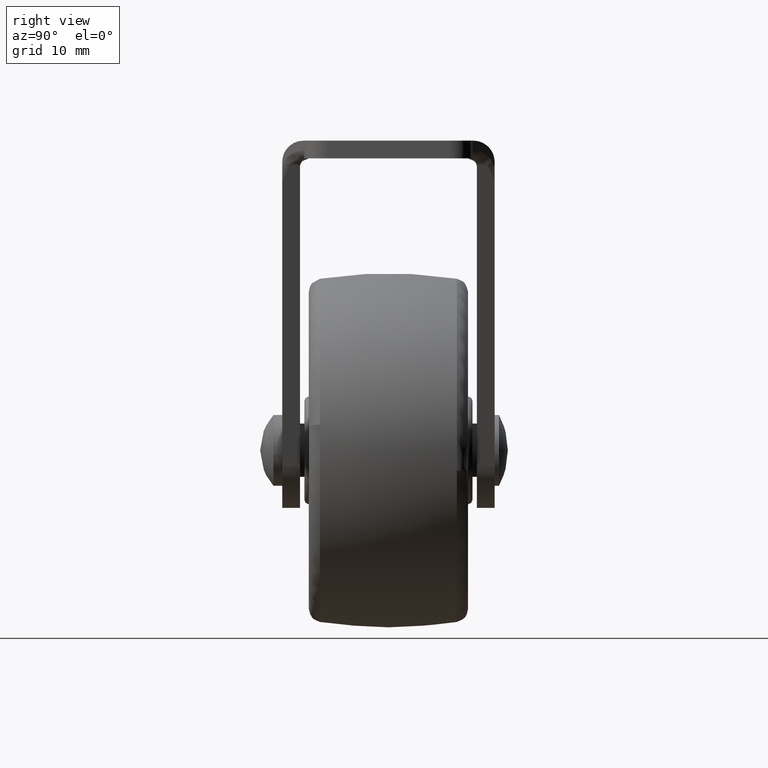
[diagram: clean part render]
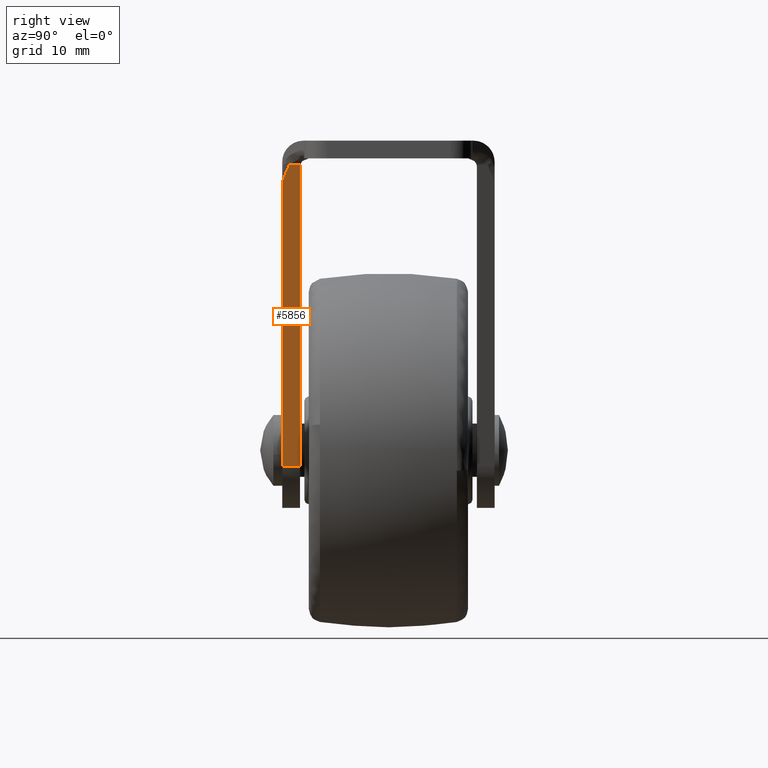
[diagram: same view with one face highlighted and labeled with its STEP entity id]
A machine part, right view. The second image highlights one B-rep face of the part: STEP entity #5856.
In plain terms, the highlighted face is a freeform B-spline surface patch.
Its self-contained STEP definition (entity closure, byte-faithful):
#4627=CARTESIAN_POINT('',(15.490419608351701,-12.0,-4.642228871819250));
#4628=VERTEX_POINT('',#4627);
#4644=CARTESIAN_POINT('',(16.041948829461099,-11.212101112700800,-2.723712979397050));
#4645=VERTEX_POINT('',#4644);
#4646=CARTESIAN_POINT('',(16.041948829461099,-11.212101112700800,-2.723712979397050));
#4647=CARTESIAN_POINT('',(15.490419608351701,-12.0,-4.642228871819250));
#4648=QUASI_UNIFORM_CURVE('',1,(#4646,#4647),.UNSPECIFIED.,.F.,.U.);
#4649=EDGE_CURVE('',#4645,#4628,#4648,.T.);
#5589=CARTESIAN_POINT('',(16.041948829461099,-9.961075169925049,-2.723712979397050));
#5590=VERTEX_POINT('',#5589);
#5604=CARTESIAN_POINT('',(15.962522661620900,-10.0,-2.999999999999890));
#5605=VERTEX_POINT('',#5604);
#5606=CARTESIAN_POINT('',(15.962522661620900,-10.0,-2.999999999999890));
#5607=CARTESIAN_POINT('',(16.003023999386169,-9.999999999999998,-2.859114517974482));
#5608=CARTESIAN_POINT('',(16.041948829461120,-9.961075169925049,-2.723712979397046));
#5616=(BOUNDED_CURVE()B_SPLINE_CURVE(2,(#5606,#5607,#5608),.UNSPECIFIED.,.F.,.U.)CURVE()GEOMETRIC_REPRESENTATION_ITEM()QUASI_UNIFORM_CURVE()RATIONAL_B_SPLINE_CURVE((1.0,0.990220977844099,1.0))REPRESENTATION_ITEM(''));
#5617=EDGE_CURVE('',#5605,#5590,#5616,.T.);
#5747=CARTESIAN_POINT('',(16.041948829461099,-9.961075169925049,-2.723712979397050));
#5748=CARTESIAN_POINT('',(16.041948829461099,-11.212101112700800,-2.723712979397050));
#5749=QUASI_UNIFORM_CURVE('',1,(#5747,#5748),.UNSPECIFIED.,.F.,.U.);
#5750=EDGE_CURVE('',#5590,#4645,#5749,.T.);
#5827=CARTESIAN_POINT('',(16.531207068913702,-12.101844305879361,-1.021809123786058));
#5828=CARTESIAN_POINT('',(5.757730198416422,-12.101844305879361,-38.497768332466883));
#5829=CARTESIAN_POINT('',(16.531207068913702,-9.859230517686932,-1.021809123786058));
#5830=CARTESIAN_POINT('',(5.757730198416422,-9.859230517686932,-38.497768332466883));
#5831=B_SPLINE_SURFACE_WITH_KNOTS('',1,1,((#5827,#5829),(#5828,#5830)),.UNSPECIFIED.,.F.,.F.,.U.,(2,2),(2,2),(0.0,38.993785690669327),(0.0,2.242613788192426),.UNSPECIFIED.);
#5832=ORIENTED_EDGE('',*,*,#5750,.T.);
#5833=ORIENTED_EDGE('',*,*,#4649,.T.);
#5834=CARTESIAN_POINT('',(6.246988000000100,-12.0,-36.795865999999812));
#5835=VERTEX_POINT('',#5834);
#5836=CARTESIAN_POINT('',(15.490419608351701,-12.0,-4.642228871819250));
#5837=CARTESIAN_POINT('',(6.246988000000100,-12.0,-36.795865999999812));
#5838=QUASI_UNIFORM_CURVE('',1,(#5836,#5837),.UNSPECIFIED.,.F.,.U.);
#5839=EDGE_CURVE('',#4628,#5835,#5838,.T.);
#5840=ORIENTED_EDGE('',*,*,#5839,.T.);
#5841=CARTESIAN_POINT('',(6.246988000000100,-10.0,-36.795865999999812));
#5842=VERTEX_POINT('',#5841);
#5843=CARTESIAN_POINT('',(6.246988000000100,-12.0,-36.795865999999812));
#5844=CARTESIAN_POINT('',(6.246988000000100,-10.0,-36.795865999999812));
#5845=QUASI_UNIFORM_CURVE('',1,(#5843,#5844),.UNSPECIFIED.,.F.,.U.);
#5846=EDGE_CURVE('',#5835,#5842,#5845,.T.);
#5847=ORIENTED_EDGE('',*,*,#5846,.T.);
#5848=CARTESIAN_POINT('',(6.246988000000100,-10.0,-36.795865999999812));
#5849=CARTESIAN_POINT('',(15.962522661620900,-10.0,-2.999999999999890));
#5850=QUASI_UNIFORM_CURVE('',1,(#5848,#5849),.UNSPECIFIED.,.F.,.U.);
#5851=EDGE_CURVE('',#5842,#5605,#5850,.T.);
#5852=ORIENTED_EDGE('',*,*,#5851,.T.);
#5853=ORIENTED_EDGE('',*,*,#5617,.T.);
#5854=EDGE_LOOP('',(#5832,#5833,#5840,#5847,#5852,#5853));
#5855=FACE_OUTER_BOUND('',#5854,.T.);
#5856=ADVANCED_FACE('',(#5855),#5831,.T.);